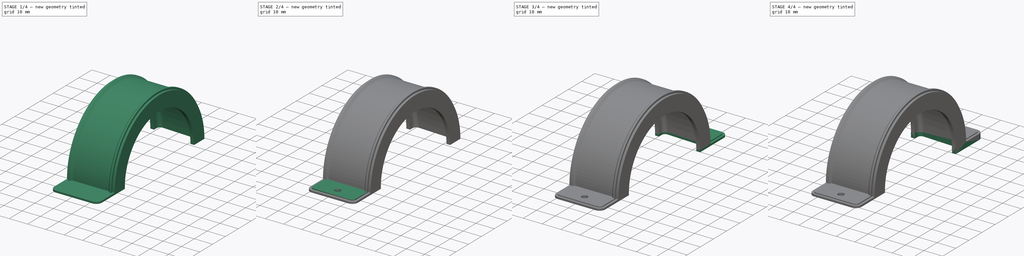
[diagram: build sequence overview — one tinted view per stage of 4, left to right]
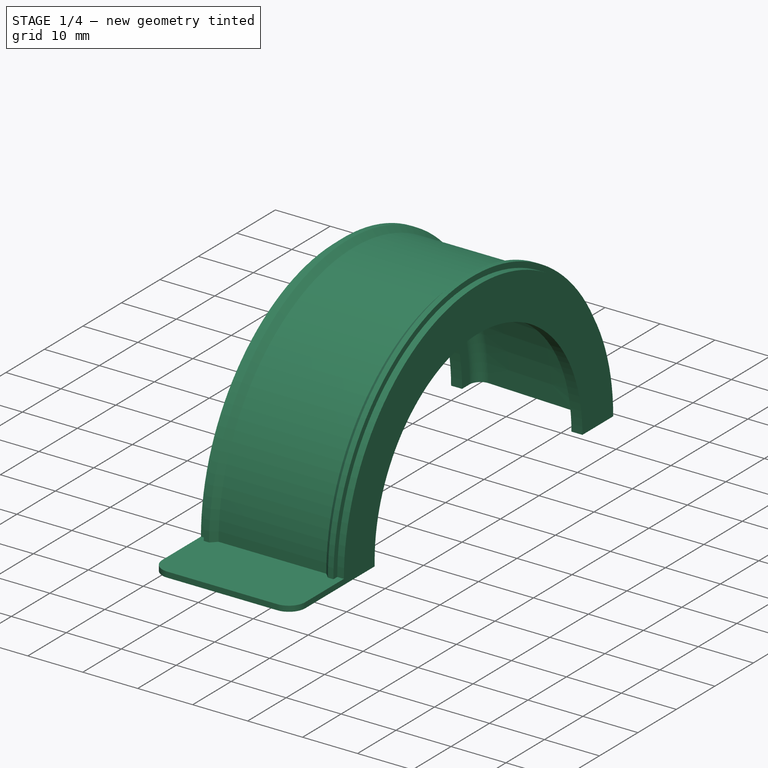
[diagram: stage 1 of 4 — iso view after this stage's code; geometry added in this stage tinted green]
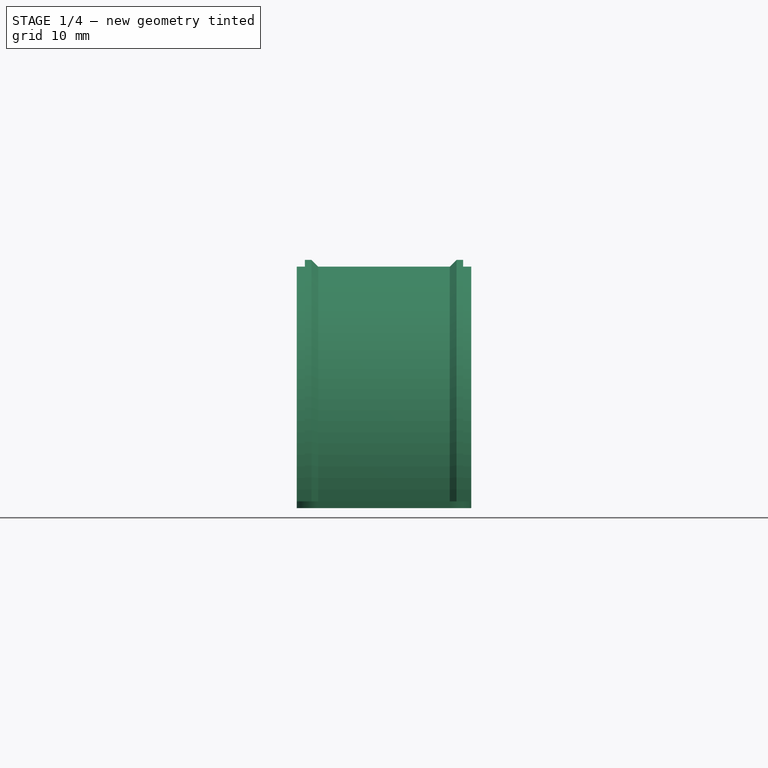
[diagram: stage 1 of 4 — front view after this stage's code; geometry added in this stage tinted green]
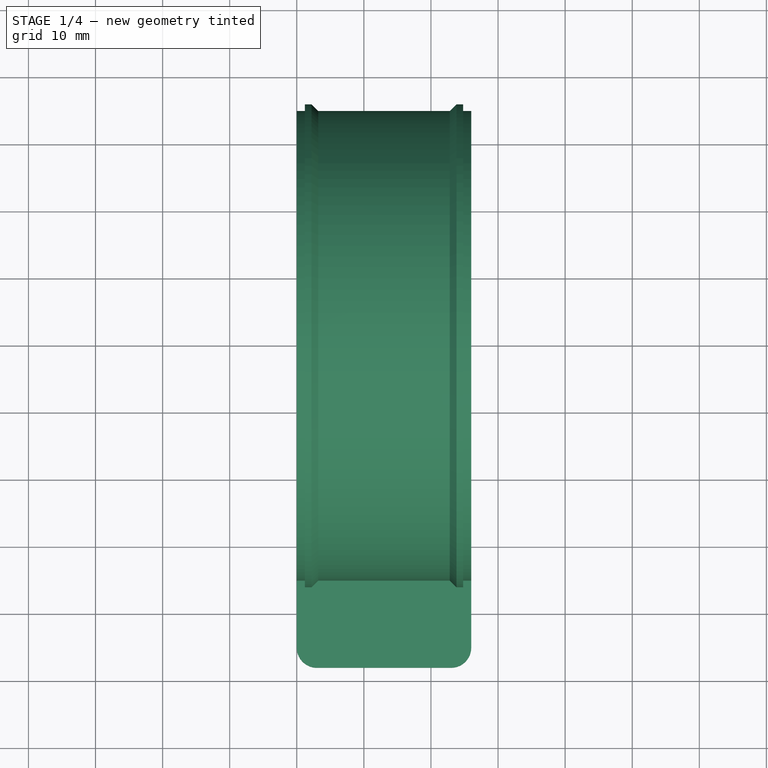
[diagram: stage 1 of 4 — top view after this stage's code; geometry added in this stage tinted green]
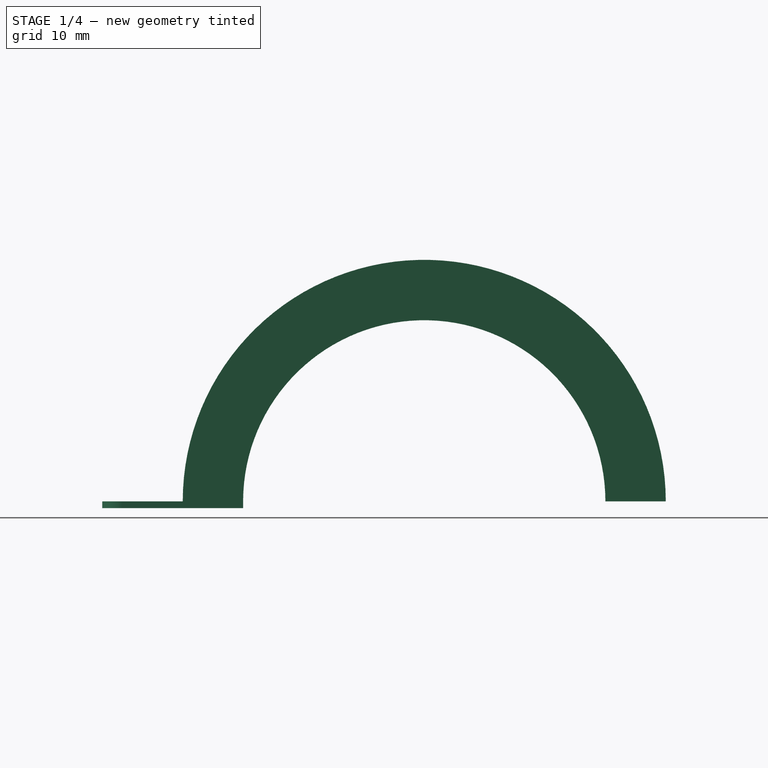
[diagram: stage 1 of 4 — right view after this stage's code; geometry added in this stage tinted green]
FCSTD DOCUMENT  (FreeCAD 1.0R39285 (Git))
Label: UpperPartBack
License: All rights reserved
LicenseURL: https://en.wikipedia.org/wiki/All_rights_reserved
objects: Sketcher::SketchObject×8, PartDesign::Pad×4, PartDesign::Hole×2, Spreadsheet::Sheet×1, PartDesign::Revolution×1, PartDesign::Mirrored×1, App::Link×1, PartDesign::Pocket×1, PartDesign::Body×1
note: 43 computed .brp shape members not serialized (recipe doc carries the construction recipe); baked Part::Feature solids carry a one-line shape summary decoded from their .brp
EXTERNAL_REF file=MainDimensions.FCStd obj=Spreadsheet

FEATURE [Spreadsheet::Sheet] Parameters
  cells = A1='Parameter; B1='Value; C1='Fromula; D1='Tolerance; E1='Comment; A2='d10; B2(d10_)=4; C2='4mm; A3='d11; B3(d11_)=2; C3='2mm; A4='d12; B4(d12_)=1.2; C4='1.2mm; A5='d13; B5(d13_)=70; C5='70mm; A6='d14; B6(d14_)=1; C6='1mm; A7='d15; B7(d15_)=180; C7='180°; A8='d16; B8(d16_)=26; C8='26mm; A9='d17; B9(d17_)=48; C9='48mm; A10='d18; B10(d18_)=3; C10='3mm; A11='d19; B11(d19_)=1; C11='1mm; A12='d2; B12(d2_)=22; C12='22mm; A13='d20; B13(d20_)=0; C13='0°; A14='d21; B14(d21_)=0.5; C14='0.5mm; A15='d22; B15(d22_)=0; C15='0°; A16='d23; B16(d23_)=3.2; C16='3.2mm; A17='d24; B17(d24_)=6; C17='6mm; A18='d25; B18(d25_)=4; C18='4mm; A19='d26; B19(d26_)=2; C19='2mm; A20='d27; B20(d27_)=90; C20='90°; A21='d28; B21(d28_)=4.5; C21='4.5mm; A22='d29; B22(d29_)=118; C22='118°; A23='d3; B23(d3_)=2; C23='2mm; A24='d30; B24(d30_)=42; C24='42mm; A25='d31; B25(d31_)=4.2; C25='4.2mm; A26='d32; B26(d32_)=6; C26='6mm; A27='d33; B27(d33_)=4; C27='4mm; A28='d34; B28(d34_)=2; C28='2mm; A29='d35; B29(d35_)=90; C29='90°; A30='d36; B30(d36_)=8; C30='8mm; A31='d37; B31(d37_)=118; C31='118°; A32='d38; B32(d38_)=4.5; C32='4.5mm; A33='d39; B33(d39_)=6; C33='6mm; A34='d4; B34(d4_)=6; C34='6mm; A35='d40; B35(d40_)=4.5; C35='4.5mm; A36='d41; B36(d41_)=0; C36='0°; A37='d42; B37(d42_)=1; C37='1mm; A38='d43; B38(d43_)=2; C38='2mm; A39='d44; B39(d44_)=45; C39='45°; A40='d45; B40(d45_)=4.5; C40='4.5mm; A41='d46; B41(d46_)=0; C41='0°; A42='d47; B42(d47_)=4; C42='4mm; A43='d48; B43(d48_)=6; C43='6mm; A44='d49; B44(d49_)=2; C44='2mm; A45='d50; B45(d50_)=0; C45='0°; A46='d51; B46(d51_)=1; C46='1mm; A47='d52; B47(d52_)=0; C47='0°; A48='d53; B48(d53_)=0.2; C48='0.2mm; A49='d54; B49(d54_)=2; C49='2mm; A50='d55; B50(d55_)=45; C50='45°; A51='d56; B51(d56_)=3; C51='3mm; A52='d57; B52(d57_)=6; C52='6mm; A53='d58; B53(d58_)=4; C53='4mm; A54='d59; B54(d59_)=2; C54='2mm; A55='d60; B55(d60_)=90; C55='90°; A56='d61; B56(d61_)=8; C56='8mm; A57='d62; B57(d62_)=118; C57='118°; A58='d63; B58(d63_)=1.5; C58='1.5mm; A59='d64; B59(d64_)=2; C59='2mm; A60='d65; B60(d65_)=45; C60='45°; A61='d66; B61(d66_)=1; C61='1mm; A62='d67; B62(d67_)=3; C62='3mm; A63='d68; B63(d68_)=0; C63='0°; A64='d7; B64(d7_)=2; C64='2mm; A65='d8; B65(d8_)=4; C65='4mm; A66='d9; B66(d9_)=3.5; C66='3.5mm
FEATURE [Sketcher::SketchObject] Sketch1
  ArcFitTolerance = 1e-06
  FullyConstrained = true
  MakeInternals = false
  expr: .Constraints.d12 = Parameters.d12_
  expr: .Constraints.d16 = MainDimensions#Spreadsheet.Width
  expr: .Constraints.d3 = Parameters.d3_
  expr: Constraints[16] = MainDimensions#Spreadsheet.Cut_Diameter / 2
  expr: Constraints[20] = MainDimensions#Spreadsheet.Inner_Diameter_2 / 2
  expr: Constraints[26] = MainDimensions#Spreadsheet.Inner_Diameter_1 / 2
  sketch-geometry (23):
    g0: LineSegment StartX=2 StartY=30 StartZ=0 EndX=2 EndY=31.907 EndZ=0
    g1: LineSegment StartX=24 StartY=29.5 StartZ=0 EndX=24 EndY=27 EndZ=0
    g2: LineSegment StartX=24 StartY=27 StartZ=0 EndX=26 EndY=27 EndZ=0
    g3: LineSegment StartX=26 StartY=27 StartZ=0 EndX=26 EndY=35 EndZ=0
    g4: LineSegment StartX=0 StartY=35 StartZ=0 EndX=0 EndY=30 EndZ=0
    g5: LineSegment StartX=0 StartY=30 StartZ=0 EndX=2 EndY=30 EndZ=0
    g6: LineSegment StartX=0 StartY=35 StartZ=0 EndX=1.2 EndY=35 EndZ=0
    g7: LineSegment StartX=1.2 StartY=35 StartZ=0 EndX=1.2 EndY=36 EndZ=0
    g8: LineSegment StartX=3.2 StartY=35 StartZ=0 EndX=22.8 EndY=35 EndZ=0
    g9: LineSegment [constr] StartX=23.8 StartY=35 StartZ=0 EndX=23.8 EndY=36 EndZ=0
    g10: LineSegment StartX=26 StartY=35 StartZ=0 EndX=24.8 EndY=35 EndZ=0
    g11: LineSegment StartX=24.8 StartY=35 StartZ=0 EndX=24.8 EndY=36 EndZ=0
    g12: LineSegment StartX=24.8 StartY=36 StartZ=0 EndX=23.8 EndY=36 EndZ=0
    g13: LineSegment StartX=4.09082 StartY=33.905 StartZ=0 EndX=20 EndY=33.1818 EndZ=0
    g14: LineSegment [constr] StartX=20 StartY=33.1818 StartZ=0 EndX=24 EndY=33 EndZ=0
    g15: LineSegment [constr] StartX=24 StartY=29.5 StartZ=0 EndX=24 EndY=33 EndZ=0
    g16: LineSegment StartX=1.2 StartY=36 StartZ=0 EndX=2.2 EndY=36 EndZ=0
    g17: LineSegment [constr] StartX=2.2 StartY=36 StartZ=0 EndX=2.2 EndY=35 EndZ=0
    g18: LineSegment StartX=20 StartY=33.1818 StartZ=0 EndX=24 EndY=29.5 EndZ=0
    g19: ArcOfCircle CenterX=4 CenterY=31.907 CenterZ=0 NormalX=0 NormalY=0 NormalZ=1 AngleXU=0 Radius=2 StartAngle=1.52537 EndAngle=3.14159
    g20: GeomPoint [constr] X=2 Y=34 Z=0
    g21: LineSegment StartX=23.8 StartY=36 StartZ=0 EndX=22.8 EndY=35 EndZ=0
    g22: LineSegment StartX=2.2 StartY=36 StartZ=0 EndX=3.2 EndY=35 EndZ=0
  constraints (63):
    c: Vertical(g0)
    c: Parallel(g0,g1)
    c: Perpendicular(g1,g2)
    c: Perpendicular(g2,g3)
    c: Vertical(g4)
    c: Perpendicular(g4,g5)
    c: Horizontal(g6)
    c: Perpendicular(g6,g7)
    c: Perpendicular(g8,g9)
    c: Perpendicular(g10,g11)
    c: Horizontal(g12)
    c: Equal(g11,g12)
    c: Equal(g10,g6)
    c: Distance(g2) = 2  'd3'
    c: Distance(g6) = 1.2  'd12'
    c: Distance(g3,g4) = 26  'd16'
    c: Distance(g-1,g6) = 35
    c: Coincident(g6,g4)
    c: Coincident(g4,g5)
    c: Coincident(g0,g5)
    c: DistanceY(g-1,g20) = 34
    c: Tangent(g14,g13) = -1.5708
    c: Coincident(g15,g1)
    c: Vertical(g15)
    c: Coincident(g14,g15)
    c: Distance(g15,g15) = 3.5
    c: DistanceY(g-1,g14) = 33
    c: Vertical(g-1,g4)
    c: Coincident(g6,g7)
    c: Coincident(g16,g7)
    c: Horizontal(g16)
    c: Vertical(g17)
    c: Equal(g16,g17)
    c: Coincident(g17,g16)
    c: DistanceY(g17,g17) = 1
    c: Tangent(g8,g6)
    c: Tangent(g10,g8)
    c: Coincident(g12,g9)
    c: Coincident(g12,g11)
    c: Coincident(g11,g10)
    c: Equal(g9,g17)
    c: Coincident(g3,g10)
    c: Coincident(g3,g2)
    c: Coincident(g2,g1)
    c: Distance(g13,g1) = 4
    c: Coincident(g18,g13)
    c: Coincident(g18,g1)
    c: Distance(g14,g2) = 6
    c: Equal(g5,g2)
    c: Distance(g20,g5) = 4
    c: PointOnObject(g20,g0)
    c: PointOnObject(g20,g13)
    c: Tangent(g0,g19) = 1.5708
    c: Tangent(g13,g19) = 1.5708
    c: Radius(g19) = 2
    c: Coincident(g21,g9)
    c: Coincident(g22,g16)
    c: Angle(g8,g22) = 2.35619
    c: Angle(g21,g8) = 2.35619
    c: Coincident(g8,g22)
    c: Coincident(g8,g21)
    c: PointOnObject(g17,g8)
    c: PointOnObject(g9,g8)
FEATURE [PartDesign::Revolution] Revolution
  Angle = 180
  Angle2 = 60
  Axis = (1,0,0)
  Base = (0,0,0)
  Profile = -> Sketch1
  ReferenceAxis = -> X_Axis001
  Refine = true
  Suppressed = false
  Type = 0
FEATURE [Sketcher::SketchObject] Sketch2
  ArcFitTolerance = 1e-06
  ExternalGeometry = -> [Revolution]
  FullyConstrained = true
  MakeInternals = false
  Placement = pos=(13,-35,0) rot=(0,1,0;3.14159rad)
  expr: .Placement.Base.x = MainDimensions#Spreadsheet.Width / 2
  expr: .Placement.Base.y = -MainDimensions#Spreadsheet.Cut_Diameter / 2
  expr: Constraints[7] = MainDimensions#Spreadsheet.Width
  expr: Constraints[8] = (MainDimensions#Spreadsheet.Outer_Diameter - MainDimensions#Spreadsheet.Cut_Diameter) / 2
  sketch-geometry (17):
    g0: LineSegment [constr] StartX=13 StartY=0 StartZ=0 EndX=-13 EndY=0 EndZ=0
    g1: LineSegment StartX=-13 StartY=0 StartZ=0 EndX=-13 EndY=-10 EndZ=0
    g2: LineSegment StartX=13 StartY=-10 StartZ=0 EndX=13 EndY=0 EndZ=0
    g3: LineSegment StartX=-10 StartY=-13 StartZ=0 EndX=10 EndY=-13 EndZ=0
    g4: ArcOfCircle CenterX=-10 CenterY=-10 CenterZ=0 NormalX=0 NormalY=0 NormalZ=1 AngleXU=0 Radius=3 StartAngle=3.14159 EndAngle=4.71239
    g5: GeomPoint [constr] X=-13 Y=-13 Z=0
    g6: ArcOfCircle CenterX=10 CenterY=-10 CenterZ=0 NormalX=0 NormalY=0 NormalZ=1 AngleXU=0 Radius=3 StartAngle=4.71239 EndAngle=6.28319
    g7: GeomPoint [constr] X=13 Y=-13 Z=0
    g8: LineSegment StartX=-13 StartY=0 StartZ=0 EndX=-13 EndY=8 EndZ=0
    g9: LineSegment StartX=-13 StartY=8 StartZ=0 EndX=-11 EndY=8 EndZ=0
    g10: LineSegment StartX=-11 StartY=8 StartZ=0 EndX=-11 EndY=5.5 EndZ=0
    g11: LineSegment StartX=-11 StartY=5.5 StartZ=0 EndX=-7 EndY=1.81818 EndZ=0
    g12: LineSegment StartX=-7 StartY=1.81818 StartZ=0 EndX=8.90918 EndY=1.09504 EndZ=0
    g13: LineSegment StartX=11 StartY=3.09297 StartZ=0 EndX=11 EndY=5 EndZ=0
    g14: LineSegment StartX=11 StartY=5 StartZ=0 EndX=13 EndY=5 EndZ=0
    g15: LineSegment StartX=13 StartY=5 StartZ=0 EndX=13 EndY=0 EndZ=0
    g16: ArcOfCircle CenterX=9 CenterY=3.09297 CenterZ=0 NormalX=0 NormalY=0 NormalZ=1 AngleXU=0 Radius=2 StartAngle=4.66697 EndAngle=6.28319
  constraints (38):
    c: Perpendicular(g0,g1)
    c: Parallel(g1,g2)
    c: Horizontal(g0)
    c: Symmetric(g0,g0,g-1)
    c: Coincident(g1,g0)
    c: Coincident(g2,g0)
    c: Horizontal(g3)
    c: DistanceX(g5,g7) = 26
    c: DistanceY(g5,g1) = 13
    c: PointOnObject(g5,g3)
    c: PointOnObject(g5,g1)
    c: Tangent(g3,g4) = -1.5708
    c: Tangent(g1,g4) = -1.5708
    c: PointOnObject(g7,g3)
    c: PointOnObject(g7,g2)
    c: Tangent(g3,g6) = -1.5708
    c: Tangent(g2,g6) = -1.5708
    c: Equal(g6,g4)
    c: Radius(g4) = 3
    c: Coincident(g8,g0)
    c: Coincident(g8,g-4)
    c: Coincident(g9,g8)
    c: Coincident(g9,g-5)
    c: Coincident(g10,g9)
    c: Coincident(g10,g-6)
    c: Coincident(g11,g-7)
    c: Coincident(g14,g13)
    c: Coincident(g14,g-11)
    c: Coincident(g15,g14)
    c: Coincident(g15,g0)
    c: Coincident(g12,g-8)
    c: Coincident(g12,g11)
    c: Coincident(g13,g-10)
    c: Coincident(g16,g12)
    c: Coincident(g13,g-9)
    c: Coincident(g16,g13)
    c: Radius(g16) = 2
    c: Coincident(g11,g10)
FEATURE [Sketcher::SketchObject] Sketch3
  ArcFitTolerance = 1e-06
  FullyConstrained = true
  MakeInternals = false
  Placement = pos=(13,-35,0) rot=(0,0,1;0rad)
  expr: .Placement.Base.x = MainDimensions#Spreadsheet.Width / 2
  expr: .Placement.Base.y = -MainDimensions#Spreadsheet.Cut_Diameter / 2
  expr: Constraints[6] = MainDimensions#Spreadsheet.Width - 2 * 1.2 mm
  expr: Constraints[8] = (MainDimensions#Spreadsheet.Outer_Diameter - MainDimensions#Spreadsheet.Cut_Diameter) / 2 - 1.2 mm
  sketch-geometry (11):
    g0: LineSegment StartX=-11.8 StartY=0 StartZ=0 EndX=-11.8 EndY=-10 EndZ=0
    g1: LineSegment StartX=-10 StartY=-11.8 StartZ=0 EndX=10 EndY=-11.8 EndZ=0
    g2: LineSegment StartX=11.8 StartY=-10 StartZ=0 EndX=11.8 EndY=0 EndZ=0
    g3: LineSegment [constr] StartX=-11.8 StartY=0 StartZ=0 EndX=11.8 EndY=0 EndZ=0
    g4: ArcOfCircle CenterX=-10 CenterY=-10 CenterZ=0 NormalX=0 NormalY=0 NormalZ=1 AngleXU=0 Radius=1.8 StartAngle=3.14159 EndAngle=4.71239
    g5: GeomPoint [constr] X=-11.8 Y=-11.8 Z=0
    g6: ArcOfCircle CenterX=10 CenterY=-10 CenterZ=0 NormalX=0 NormalY=0 NormalZ=1 AngleXU=0 Radius=1.8 StartAngle=4.71239 EndAngle=6.28319
    g7: GeomPoint [constr] X=11.8 Y=-11.8 Z=0
    g8: LineSegment StartX=-11.8 StartY=0 StartZ=0 EndX=-11.8 EndY=1 EndZ=0
    g9: LineSegment StartX=-11.8 StartY=1 StartZ=0 EndX=11.8 EndY=1 EndZ=0
    g10: LineSegment StartX=11.8 StartY=1 StartZ=0 EndX=11.8 EndY=0 EndZ=0
  constraints (27):
    c: Coincident(g3,g0)
    c: Coincident(g3,g2)
    c: Horizontal(g3)
    c: Symmetric(g0,g2,g-1)
    c: Horizontal(g1)
    c: Vertical(g0)
    c: DistanceX(g3,g3) = 23.6
    c: Vertical(g2)
    c: Distance(g3,g1) = 11.8
    c: PointOnObject(g5,g1)
    c: PointOnObject(g5,g0)
    c: Tangent(g1,g4) = -1.5708
    c: Tangent(g0,g4) = -1.5708
    c: PointOnObject(g7,g1)
    c: PointOnObject(g7,g2)
    c: Tangent(g1,g6) = -1.5708
    c: Tangent(g2,g6) = -1.5708
    c: Radius(g4) = 1.8
    c: Equal(g4,g6)
    c: Coincident(g8,g0)
    c: Vertical(g8)
    c: Coincident(g9,g8)
    c: Horizontal(g9)
    c: Coincident(g10,g9)
    c: Coincident(g10,g2)
    c: Vertical(g10)
    c: DistanceY(g8,g8) = 1
FEATURE [Sketcher::SketchObject] Sketch4
  ArcFitTolerance = 1e-06
  FullyConstrained = true
  MakeInternals = false
  Placement = pos=(13,-48,-1) rot=(0,1,0;3.14159rad)
  expr: .Placement.Base.x = MainDimensions#Spreadsheet.Width / 2
  expr: .Placement.Base.y = -MainDimensions#Spreadsheet.Outer_Diameter / 2
  sketch-geometry (1):
    g0: Circle CenterX=0 CenterY=6 CenterZ=0 NormalX=0 NormalY=0 NormalZ=1 AngleXU=0 Radius=1.5
  constraints (3):
    c: PointOnObject(g0,g-2)
    c: DistanceY(g-1,g0) = 6
    c: Diameter(g0) = 3
FEATURE [Sketcher::SketchObject] Sketch6
  ArcFitTolerance = 1e-06
  FullyConstrained = true
  MakeInternals = false
  Placement = pos=(13,48,0.5) rot=(0,0,1;0rad)
  expr: .Placement.Base.x = MainDimensions#Spreadsheet.Width / 2
  expr: .Placement.Base.y = MainDimensions#Spreadsheet.Outer_Diameter / 2
  expr: Constraints[8] = (MainDimensions#Spreadsheet.Outer_Diameter - MainDimensions#Spreadsheet.Inner_Diameter_2) / 2
  sketch-geometry (5):
    g0: LineSegment StartX=-5.95 StartY=-14 StartZ=0 EndX=-10.05 EndY=-14 EndZ=0
    g1: LineSegment StartX=-10.05 StartY=-14 StartZ=0 EndX=-10.05 EndY=-6 EndZ=0
    g2: LineSegment StartX=-10.05 StartY=-6 StartZ=0 EndX=-5.95 EndY=-6 EndZ=0
    g3: LineSegment StartX=-5.95 StartY=-6 StartZ=0 EndX=-5.95 EndY=-14 EndZ=0
    g4: GeomPoint X=-8 Y=-6 Z=0
  constraints (13):
    c: Coincident(g0,g3)
    c: Coincident(g1,g2)
    c: Coincident(g2,g3)
    c: Coincident(g0,g1)
    c: Vertical(g1)
    c: Horizontal(g2)
    c: Distance(g-1,g2) = 6
    c: Vertical(g3)
    c: Distance(g-1,g0) = 14
    c: Horizontal(g0)
    c: Symmetric(g1,g2,g4)
    c: DistanceX(g4,g-1) = 8
    c: DistanceX(g2,g2) = 4.1
FEATURE [Sketcher::SketchObject] Sketch5
  ArcFitTolerance = 1e-06
  ExternalGeometry = -> [Sketch6]
  FullyConstrained = true
  MakeInternals = false
  Placement = pos=(13,48,5) rot=(0,0,1;0rad)
  expr: .Placement.Base.x = MainDimensions#Spreadsheet.Width / 2
  expr: .Placement.Base.y = MainDimensions#Spreadsheet.Outer_Diameter / 2
  sketch-geometry (2):
    g0: GeomPoint X=-8 Y=-6 Z=0
    g1: Circle CenterX=-8 CenterY=-6 CenterZ=0 NormalX=0 NormalY=0 NormalZ=1 AngleXU=0 Radius=2.1
  constraints (3):
    c: Symmetric(g-3,g-3,g0)
    c: Coincident(g1,g0)
    c: Diameter(g1) = 4.2
FEATURE [PartDesign::Pad] Pad003
  BaseFeature = -> Revolution
  Direction = (1e-16,0,-1)
  Length = 1
  Length2 = 10
  Profile = -> Sketch2
  ReferenceAxis = -> Sketch2 [N_Axis]
  Refine = true
  Suppressed = false
  Type = 0
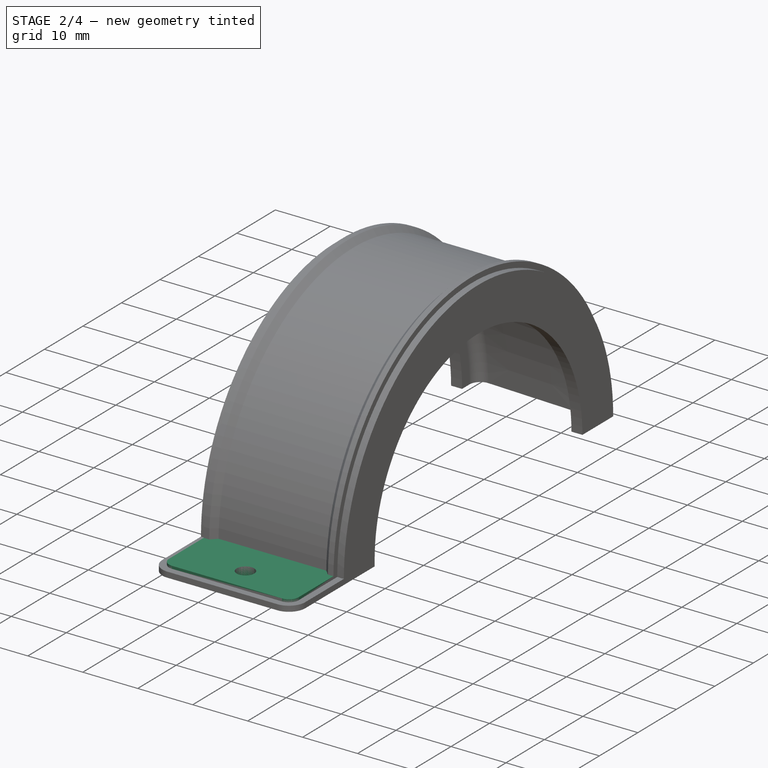
[diagram: stage 2 of 4 — iso view after this stage's code; geometry added in this stage tinted green]
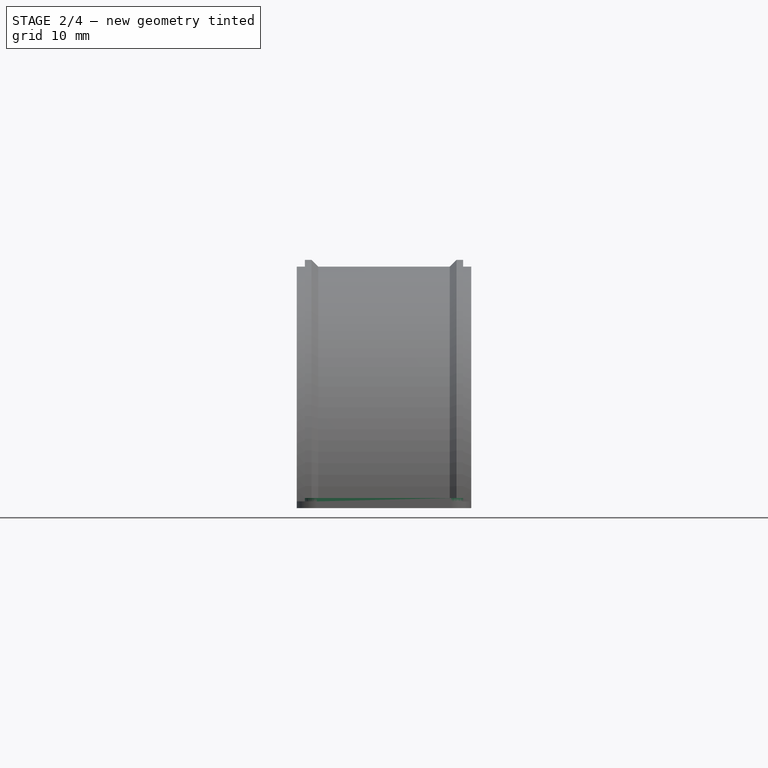
[diagram: stage 2 of 4 — front view after this stage's code; geometry added in this stage tinted green]
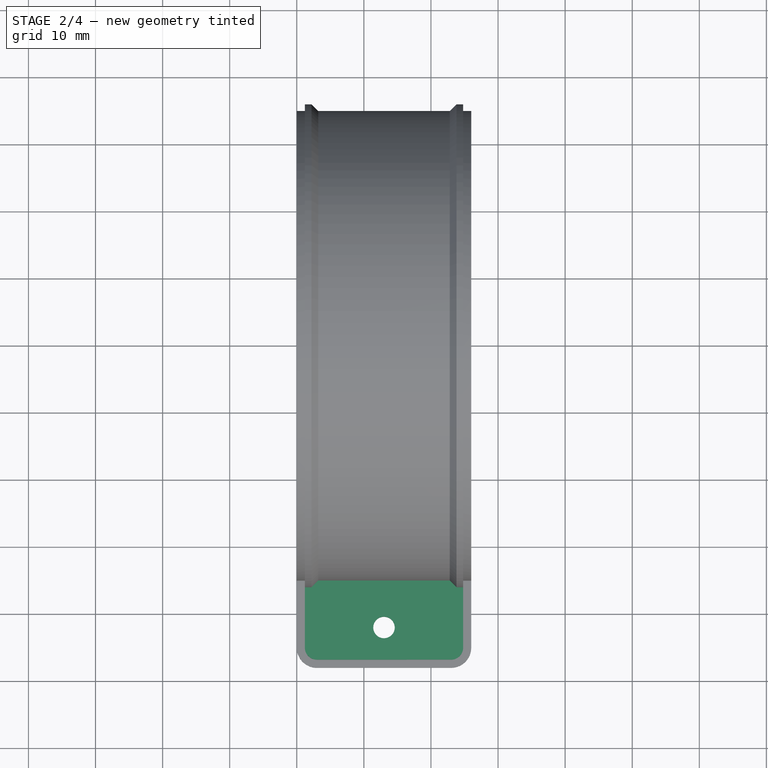
[diagram: stage 2 of 4 — top view after this stage's code; geometry added in this stage tinted green]
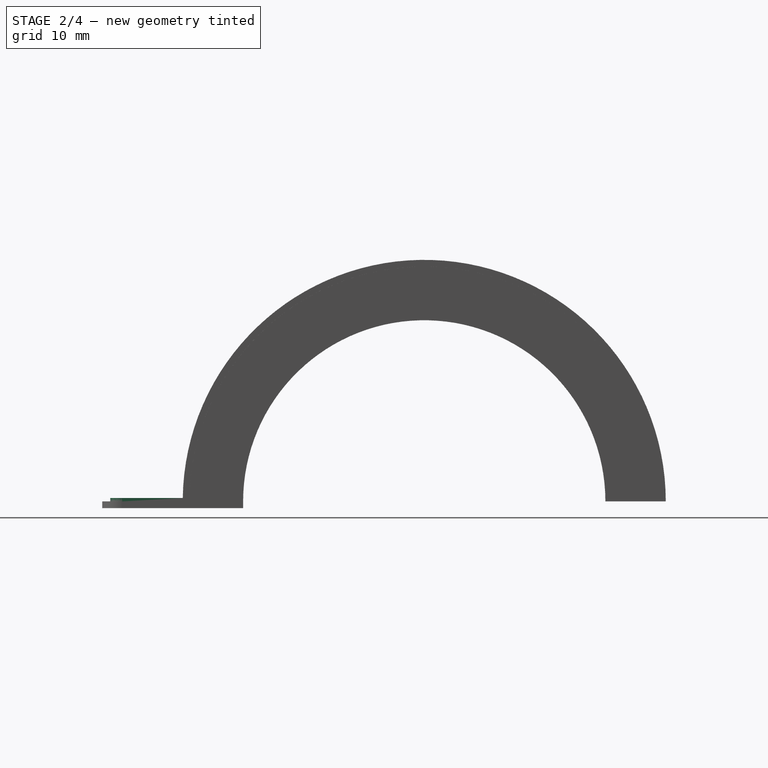
[diagram: stage 2 of 4 — right view after this stage's code; geometry added in this stage tinted green]
FEATURE [PartDesign::Pad] Pad
  BaseFeature = -> Pad003
  Direction = (0,0,1)
  Length = 0.5
  Length2 = 10
  Profile = -> Sketch3
  ReferenceAxis = -> Sketch3 [N_Axis]
  Refine = true
  Suppressed = false
  Type = 0
FEATURE [PartDesign::Hole] Hole001
  BaseFeature = -> Pad
  CustomThreadClearance = 0
  Depth = 25
  DepthType = 0
  Diameter = 3.2
  DrillForDepth = false
  DrillPoint = 1
  DrillPointAngle = 118
  HoleCutCountersinkAngle = 90
  HoleCutCustomValues = false
  HoleCutDepth = 0
  HoleCutDiameter = 6.1
  HoleCutType = 0
  ModelThread = false
  Profile = -> Sketch4
  Refine = true
  Suppressed = false
  Tapered = false
  TaperedAngle = 90
  ThreadClass = 0
  ThreadDepth = 25
  ThreadDepthType = 0
  ThreadDirection = 0
  ThreadFit = 0
  ThreadSize = 0
  ThreadType = 0
  Threaded = false
  UseCustomThreadClearance = false
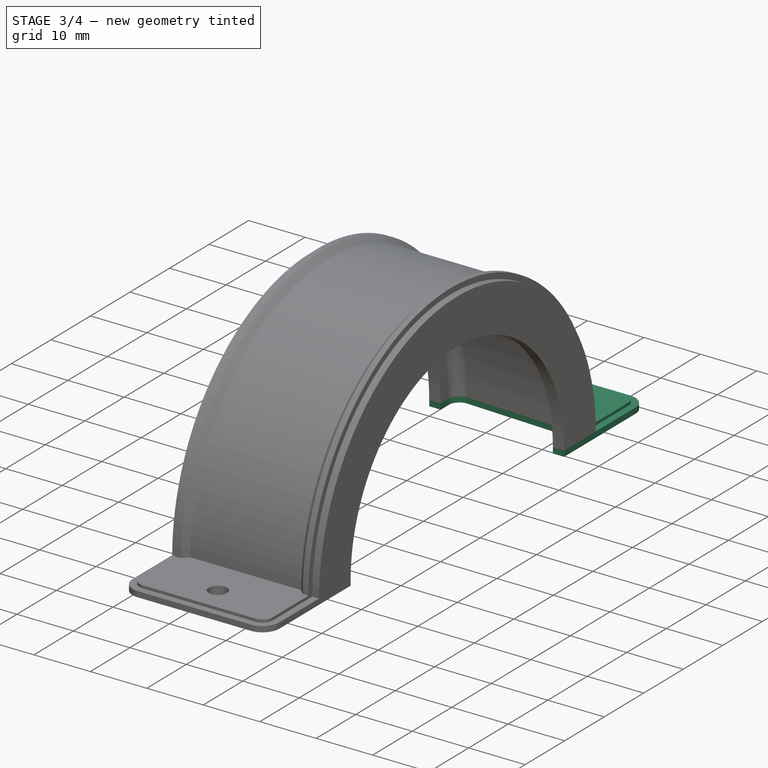
[diagram: stage 3 of 4 — iso view after this stage's code; geometry added in this stage tinted green]
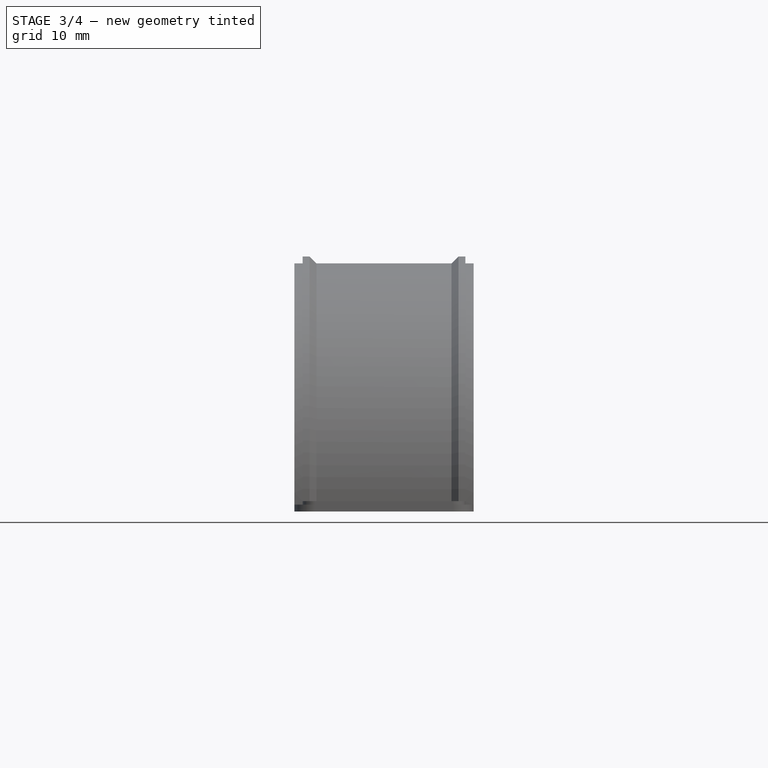
[diagram: stage 3 of 4 — front view after this stage's code; geometry added in this stage tinted green]
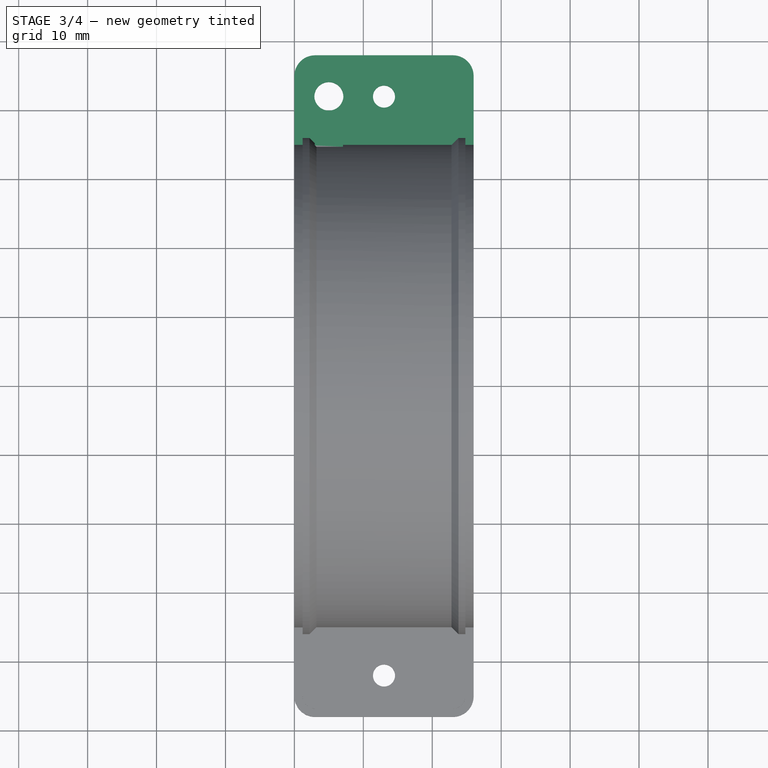
[diagram: stage 3 of 4 — top view after this stage's code; geometry added in this stage tinted green]
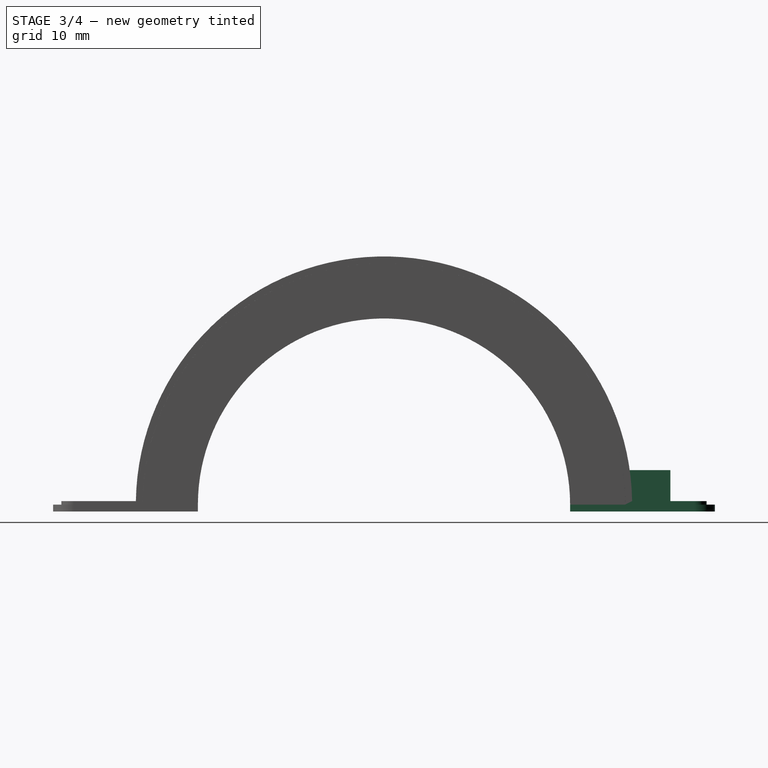
[diagram: stage 3 of 4 — right view after this stage's code; geometry added in this stage tinted green]
FEATURE [PartDesign::Mirrored] Mirrored001
  BaseFeature = -> Hole001
  MirrorPlane = -> XZ_Plane001
  Originals = -> [Pad003,Pad,Hole001]
  Refine = true
  Suppressed = false
  TransformMode = 0
FEATURE [PartDesign::Pad] Pad004
  BaseFeature = -> Mirrored001
  Direction = (0,0,1)
  Length = 4.5
  Length2 = 10
  Profile = -> Sketch6
  ReferenceAxis = -> Sketch6 [N_Axis]
  Refine = true
  Suppressed = false
  Type = 0
FEATURE [PartDesign::Hole] Hole
  BaseFeature = -> Pad004
  CustomThreadClearance = 0
  Depth = 25
  DepthType = 0
  Diameter = 4.2
  DrillForDepth = false
  DrillPoint = 1
  DrillPointAngle = 118
  HoleCutCountersinkAngle = 90
  HoleCutCustomValues = false
  HoleCutDepth = 0
  HoleCutDiameter = 6.1
  HoleCutType = 0
  ModelThread = false
  Profile = -> Sketch5
  Refine = true
  Suppressed = false
  Tapered = false
  TaperedAngle = 90
  ThreadClass = 0
  ThreadDepth = 25
  ThreadDepthType = 0
  ThreadDirection = 0
  ThreadFit = 0
  ThreadSize = 0
  ThreadType = 0
  Threaded = false
  UseCustomThreadClearance = false
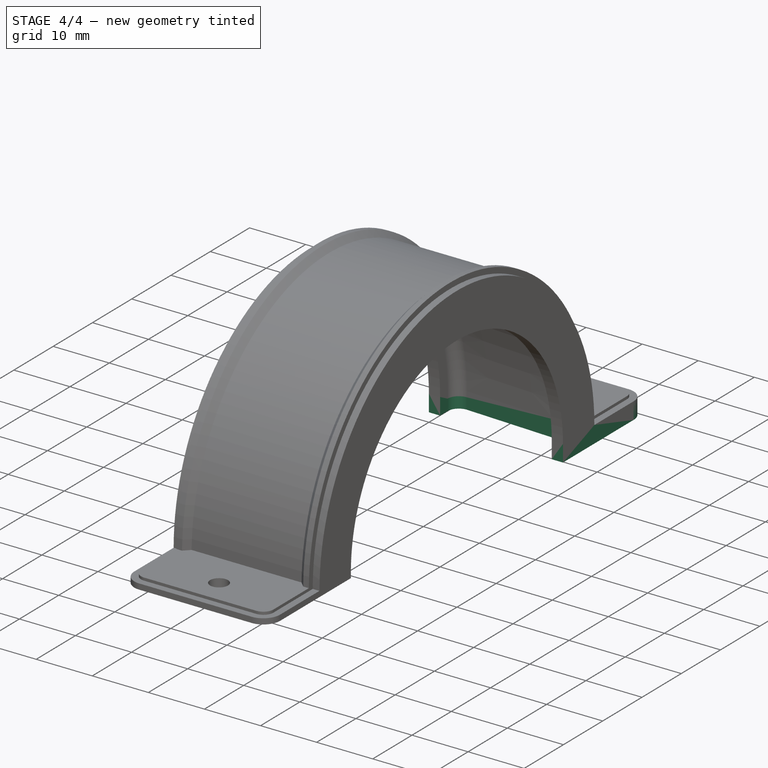
[diagram: stage 4 of 4 — iso view after this stage's code; geometry added in this stage tinted green]
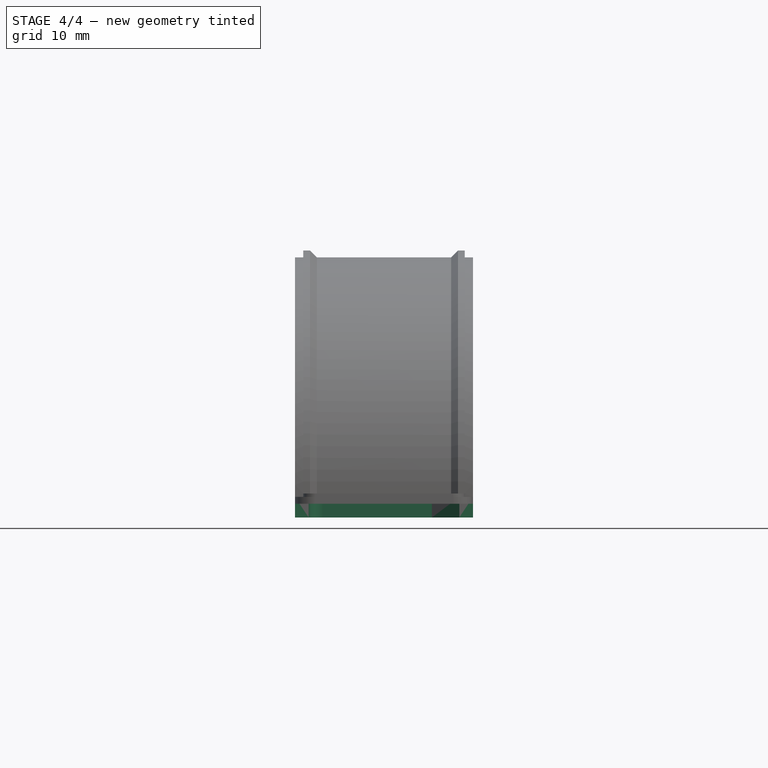
[diagram: stage 4 of 4 — front view after this stage's code; geometry added in this stage tinted green]
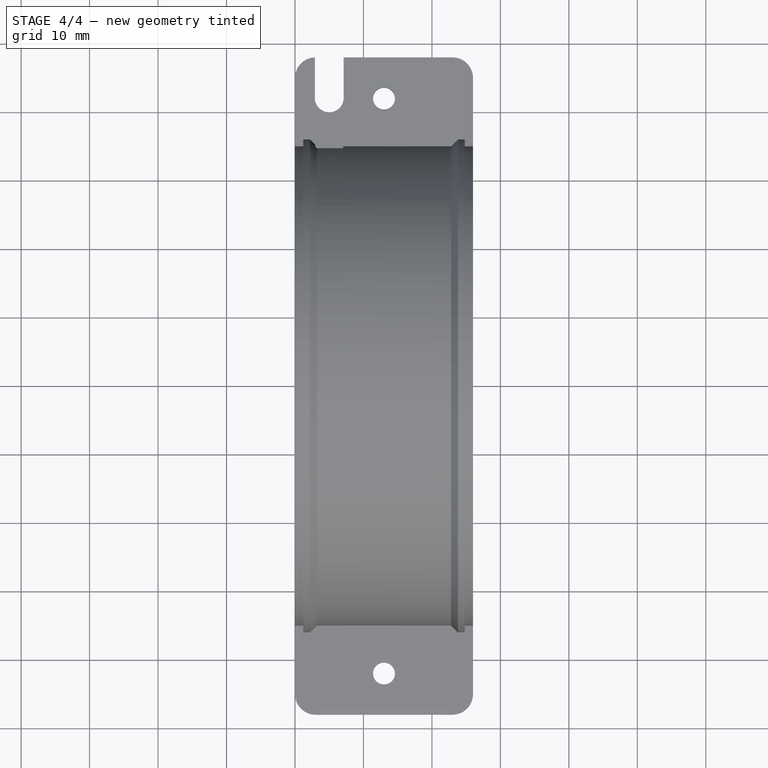
[diagram: stage 4 of 4 — top view after this stage's code; geometry added in this stage tinted green]
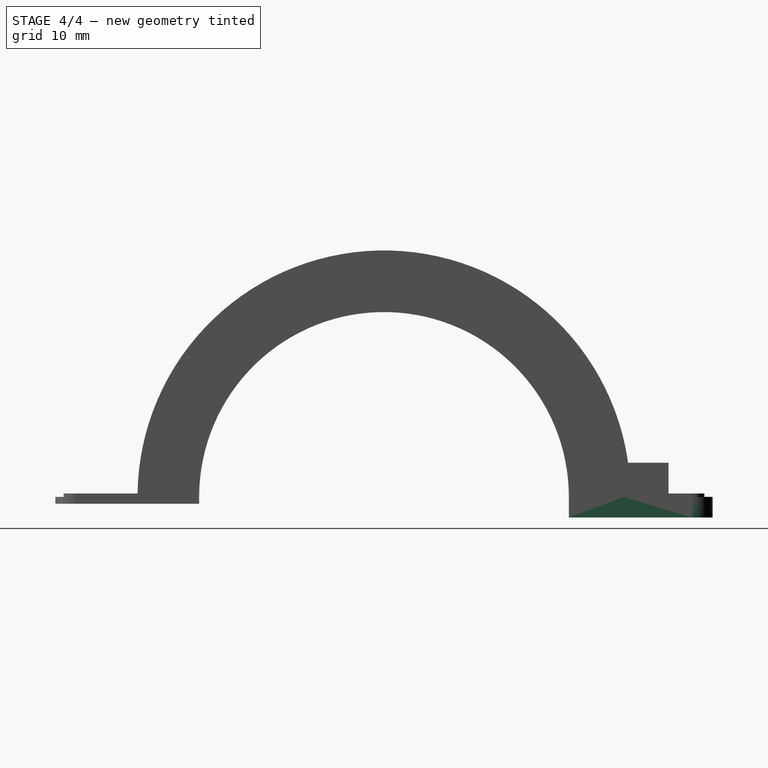
[diagram: stage 4 of 4 — right view after this stage's code; geometry added in this stage tinted green]
FEATURE [App::Link] Link  label="MainDimensions"
  LinkedObject = -> <external MainDimensions.FCStd>#Spreadsheet
FEATURE [Sketcher::SketchObject] Sketch7
  ArcFitTolerance = 1e-06
  ExternalGeometry = -> [Sketch5]
  FullyConstrained = true
  MakeInternals = false
  Placement = pos=(13,48,0) rot=(0,0,1;0rad)
  expr: .Placement.Base.x = <<MainDimensions>>.Width / 2
  expr: .Placement.Base.y = <<MainDimensions>>.Outer_Diameter / 2
  sketch-geometry (4):
    g0: LineSegment StartX=-10.1 StartY=-6 StartZ=0 EndX=-5.9 EndY=-6 EndZ=0
    g1: LineSegment StartX=-5.9 StartY=-6 StartZ=0 EndX=-5.9 EndY=0 EndZ=0
    g2: LineSegment StartX=-5.9 StartY=0 StartZ=0 EndX=-10.1 EndY=0 EndZ=0
    g3: LineSegment StartX=-10.1 StartY=0 StartZ=0 EndX=-10.1 EndY=-6 EndZ=0
  constraints (11):
    c: Coincident(g0,g1)
    c: Coincident(g1,g2)
    c: Coincident(g2,g3)
    c: Coincident(g3,g0)
    c: Horizontal(g0)
    c: Horizontal(g2)
    c: Vertical(g1)
    c: Vertical(g3)
    c: PointOnObject(g0,g-4)
    c: Symmetric(g0,g0,g-4)
    c: Horizontal(g1,g-1)
FEATURE [PartDesign::Pocket] Pocket
  BaseFeature = -> Hole
  Direction = (0,0,-1)
  Length = 5
  Length2 = 5
  Midplane = true
  Profile = -> Sketch7
  ReferenceAxis = -> Sketch7 [N_Axis]
  Refine = true
  Suppressed = false
  Type = 0
FEATURE [Sketcher::SketchObject] Sketch11
  ArcFitTolerance = 1e-06
  ExternalGeometry = -> [Pocket]
  FullyConstrained = false
  MakeInternals = false
  Placement = pos=(13,48,0) rot=(0,0,1;0rad)
  expr: .Placement.Base.x = <<MainDimensions>>.Width / 2
  expr: .Placement.Base.y = <<MainDimensions>>.Outer_Diameter / 2
  sketch-geometry (16):
    g0: LineSegment StartX=13 StartY=-21 StartZ=0 EndX=11 EndY=-21 EndZ=0
    g1: LineSegment StartX=11 StartY=-21 StartZ=0 EndX=11 EndY=-18.5 EndZ=0
    g2: LineSegment StartX=11 StartY=-18.5 StartZ=0 EndX=7 EndY=-14.8182 EndZ=0
    g3: LineSegment StartX=7 StartY=-14.8182 StartZ=0 EndX=-8.90918 EndY=-14.095 EndZ=0
    g4: LineSegment StartX=-11 StartY=-16.093 StartZ=0 EndX=-11 EndY=-18 EndZ=0
    g5: LineSegment StartX=-11 StartY=-18 StartZ=0 EndX=-13 EndY=-18 EndZ=0
    g6: LineSegment StartX=-13 StartY=-18 StartZ=0 EndX=-13 EndY=-3 EndZ=0
    g7: LineSegment StartX=-10.1 StartY=-0.00166713 StartZ=0 EndX=-10.1 EndY=-6 EndZ=0
    g8: LineSegment StartX=-5.9 StartY=-6 StartZ=0 EndX=-5.9 EndY=0 EndZ=0
    g9: LineSegment StartX=10 StartY=-3.513e-13 StartZ=0 EndX=-5.9 EndY=0 EndZ=0
    g10: LineSegment StartX=13 StartY=-3 StartZ=0 EndX=13 EndY=-21 EndZ=0
    g11: ArcOfCircle CenterX=10 CenterY=-3 CenterZ=0 NormalX=0 NormalY=0 NormalZ=1 AngleXU=0 Radius=3 StartAngle=1.172e-13 EndAngle=1.5708
    g12: ArcOfCircle CenterX=-8 CenterY=-5.99999 CenterZ=0 NormalX=0 NormalY=0 NormalZ=1 AngleXU=0 Radius=2.1 StartAngle=3.1416 EndAngle=6.28318
    g13: ArcOfCircle CenterX=-10 CenterY=-3 CenterZ=0 NormalX=0 NormalY=0 NormalZ=1 AngleXU=0 Radius=3 StartAngle=1.60414 EndAngle=3.14159
    g14: ArcOfCircle CenterX=-8.99969 CenterY=-16.0933 CenterZ=0 NormalX=0 NormalY=0 NormalZ=1 AngleXU=0 Radius=2.00031 StartAngle=1.52553 EndAngle=3.14143
    g15: Circle CenterX=0 CenterY=-6 CenterZ=0 NormalX=0 NormalY=0 NormalZ=1 AngleXU=0 Radius=1.6
  constraints (35):
    c: Coincident(g0,g-15)
    c: Coincident(g0,g-16)
    c: Coincident(g1,g0)
    c: Coincident(g1,g-17)
    c: Coincident(g2,g1)
    c: Coincident(g2,g-17)
    c: Coincident(g3,g2)
    c: Coincident(g5,g4)
    c: Coincident(g5,g-7)
    c: Coincident(g10,g0)
    c: Coincident(g4,g-6)
    c: Coincident(g6,g5)
    c: Coincident(g8,g-12)
    c: Coincident(g9,g8)
    c: Coincident(g10,g-14)
    c: Coincident(g11,g10)
    c: Coincident(g11,g-13)
    c: Coincident(g9,g11)
    c: Coincident(g12,g-11)
    c: Coincident(g12,g-10)
    c: Coincident(g12,g8)
    c: Coincident(g7,g12)
    c: Coincident(g-9,g13)
    c: Coincident(g7,g13)
    c: Coincident(g13,g-8)
    c: Coincident(g6,g13)
    c: Coincident(g4,g-5)
    c: Coincident(g14,g4)
    c: Coincident(g14,g-4)
    c: Coincident(g3,g14)
    c: Equal(g-13,g11)
    c: Equal(g-10,g12)
    c: Equal(g-8,g13)
    c: Coincident(g15,g-18)
    c: Equal(g15,g-18)
FEATURE [PartDesign::Pad] Pad005
  BaseFeature = -> Pocket
  Direction = (0,0,1)
  Length = 3
  Length2 = 10
  Profile = -> Sketch11
  ReferenceAxis = -> Sketch11 [N_Axis]
  Refine = true
  Reversed = true
  Suppressed = false
  Type = 0
FEATURE [PartDesign::Body] Body  label="UpperPartBack"
  AllowCompound = false
  Group = -> [Revolution,Sketch1,Sketch2,Pad003,Sketch3,Pad,Sketch4,Hole001,Mirrored001,Sketch6,Sketch5,Pad004,Hole,Sketch7,Pocket,Sketch11,Pad005]
  Origin = -> Origin
  Tip = -> Pad005
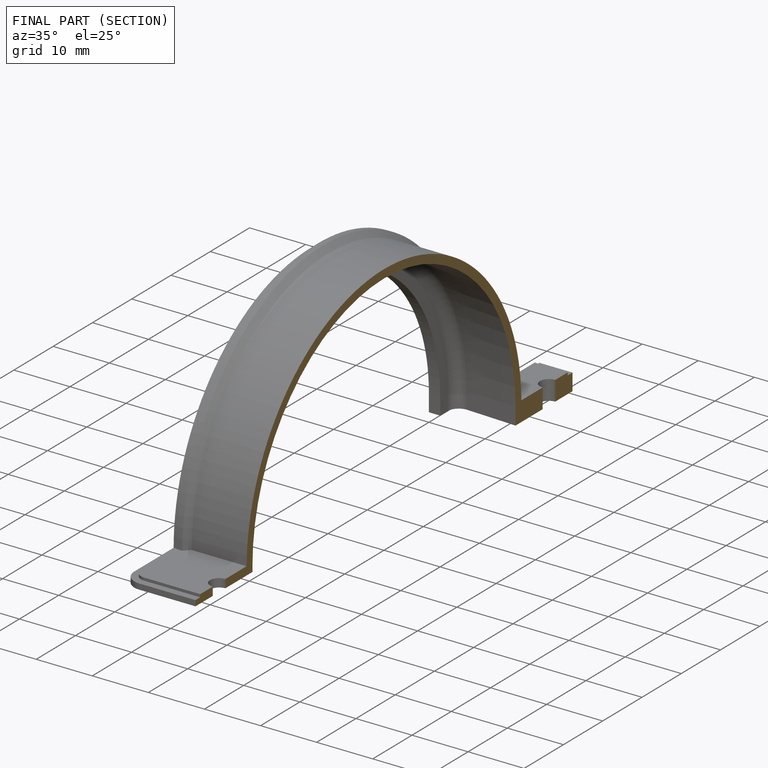
[diagram: finished part — half-section view (interior)]
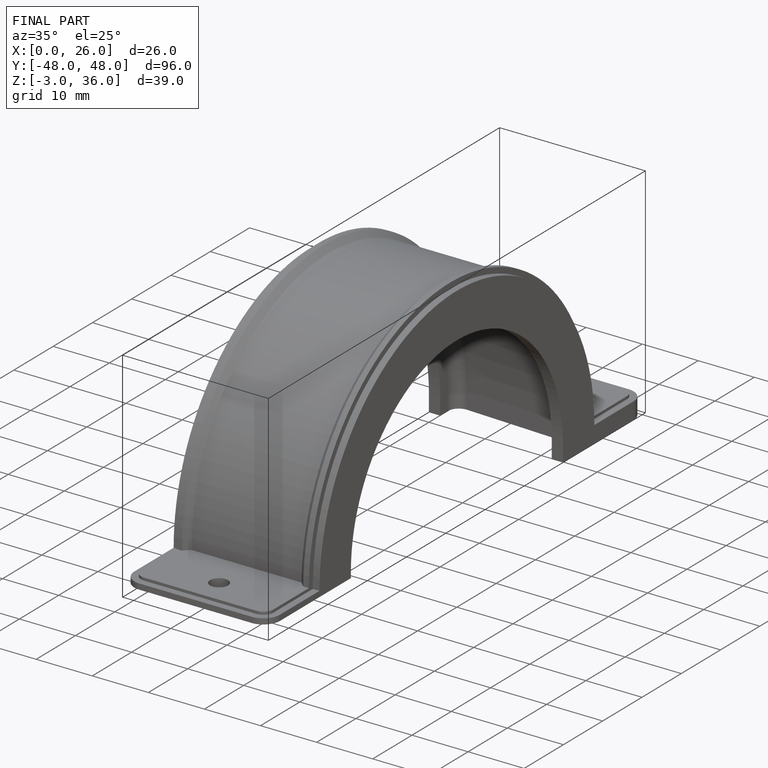
[diagram: finished part — iso view with bounding-box wireframe]
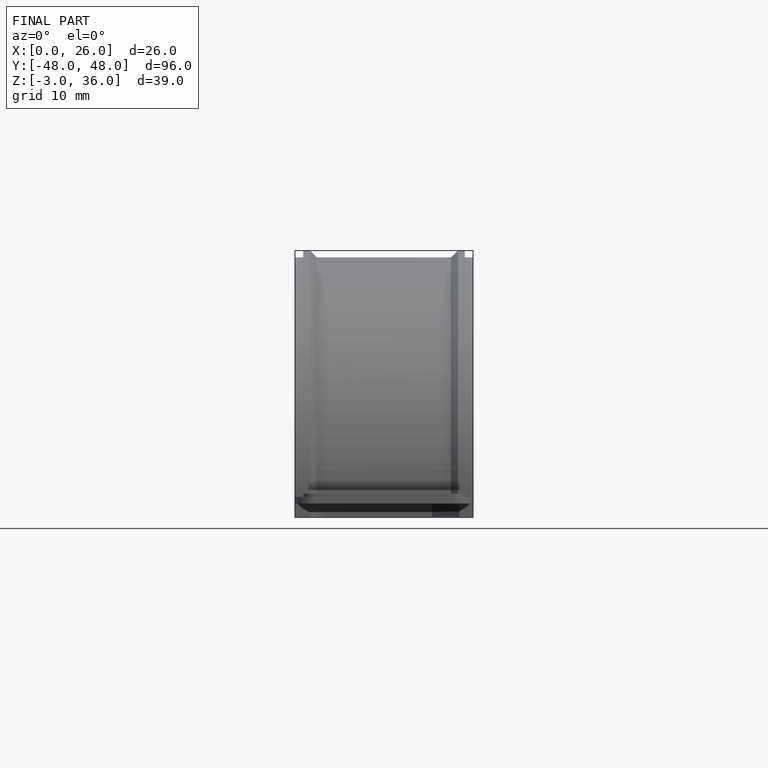
[diagram: finished part — front view with bounding-box wireframe]
